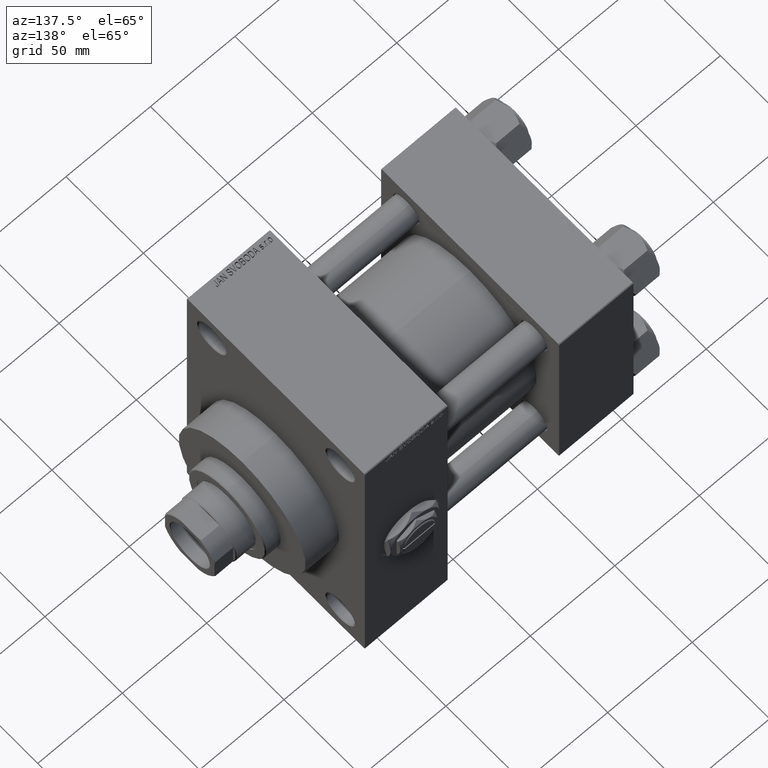
[diagram: clean part render]
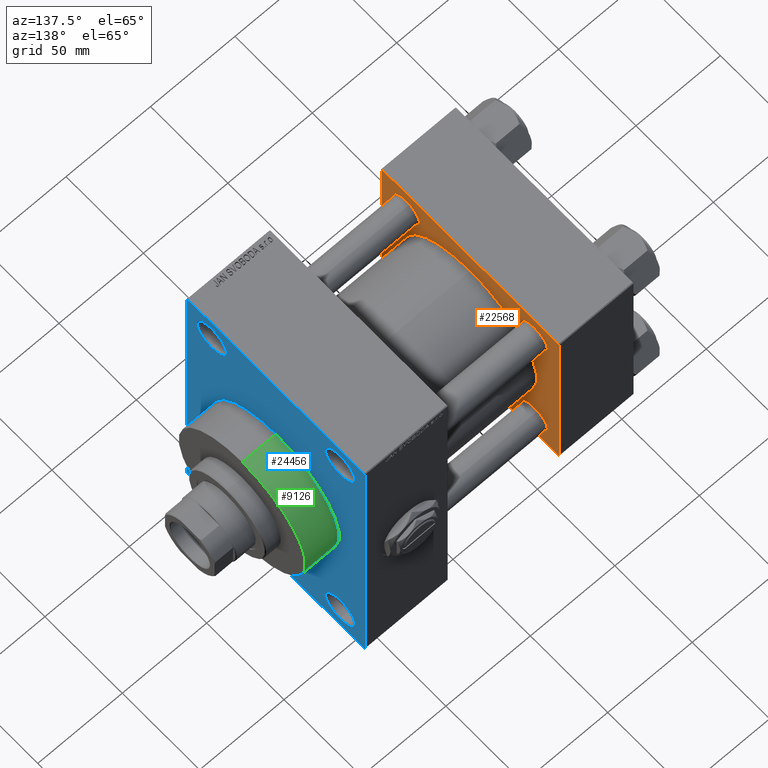
[diagram: same view with three faces highlighted in distinct colors, each labeled with its STEP entity id]
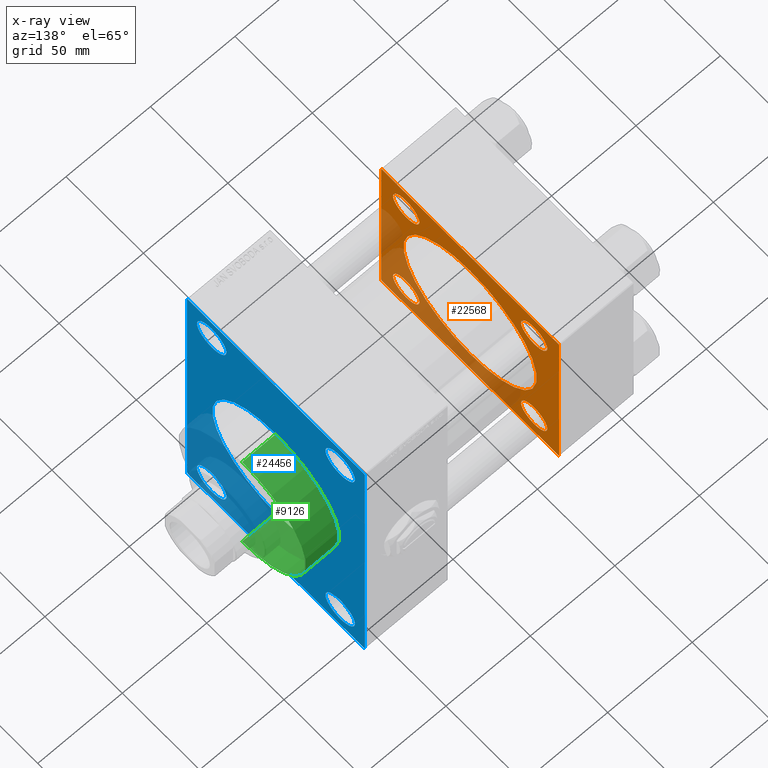
[diagram: x-ray of the same camera — body ghosted, the three highlighted faces saturated]
A machine part, auxiliary view with three faces highlighted in distinct colors.
The next image is the same camera in x-ray (body ghosted, the three faces saturated) — at least one of them is partly hidden behind the body in this view.
Their STEP definitions:

[orange] entity #22568 — the highlighted planar face has unit normal (-1, 0, 0).
#702 = FACE_BOUND ( 'NONE', #1813, .T. ) ;
#1254 = EDGE_LOOP ( 'NONE', ( #10943, #20870 ) ) ;
#1327 = LINE ( 'NONE', #38654, #24959 ) ;
#1813 = EDGE_LOOP ( 'NONE', ( #46915, #32768 ) ) ;
#1949 = DIRECTION ( 'NONE',  ( -1.000000000000000000, 0.000000000000000000, -0.000000000000000000 ) ) ;
#2425 = DIRECTION ( 'NONE',  ( -1.000000000000000000, 0.000000000000000000, -0.000000000000000000 ) ) ;
#2556 = VECTOR ( 'NONE', #47165, 1000.000000000000114 ) ;
#2649 = DIRECTION ( 'NONE',  ( -1.000000000000000000, 0.000000000000000000, -0.000000000000000000 ) ) ;
#2780 = VECTOR ( 'NONE', #45264, 1000.000000000000000 ) ;
#2898 = AXIS2_PLACEMENT_3D ( 'NONE', #33225, #14308, #25761 ) ;
#3093 = ORIENTED_EDGE ( 'NONE', *, *, #31645, .T. ) ;
#3532 = VECTOR ( 'NONE', #30349, 1000.000000000000000 ) ;
#3787 = VERTEX_POINT ( 'NONE', #44533 ) ;
#4403 = CIRCLE ( 'NONE', #18691, 43.00000000000000000 ) ;
#4936 = VERTEX_POINT ( 'NONE', #21849 ) ;
#4981 = CIRCLE ( 'NONE', #18488, 8.500000000000090594 ) ;
#5637 = DIRECTION ( 'NONE',  ( -0.000000000000000000, 0.000000000000000000, 1.000000000000000000 ) ) ;
#5666 = CARTESIAN_POINT ( 'NONE',  ( 44.00000000000000000, 41.34999999999999432, 41.35000000000000142 ) ) ;
#5720 = EDGE_CURVE ( 'NONE', #35423, #6785, #4403, .T. ) ;
#6636 = CARTESIAN_POINT ( 'NONE',  ( 44.00000000000000000, 41.34999999999999432, -41.35000000000000142 ) ) ;
#6785 = VERTEX_POINT ( 'NONE', #30821 ) ;
#7819 = CIRCLE ( 'NONE', #34824, 8.500000000000090594 ) ;
#8144 = EDGE_CURVE ( 'NONE', #6785, #35423, #35038, .T. ) ;
#8872 = FACE_BOUND ( 'NONE', #31505, .T. ) ;
#9112 = EDGE_CURVE ( 'NONE', #38554, #37947, #19185, .T. ) ;
#10046 = EDGE_CURVE ( 'NONE', #37947, #38554, #27186, .T. ) ;
#10348 = CARTESIAN_POINT ( 'NONE',  ( 44.00000000000000000, 41.34999999999999432, 41.35000000000000142 ) ) ;
#10454 = CARTESIAN_POINT ( 'NONE',  ( 44.00000000000000000, 41.34999999999999432, 32.84999999999991616 ) ) ;
#10570 = CARTESIAN_POINT ( 'NONE',  ( 44.00000000000000000, -41.34999999999998721, 41.35000000000000853 ) ) ;
#10943 = ORIENTED_EDGE ( 'NONE', *, *, #5720, .F. ) ;
#11081 = DIRECTION ( 'NONE',  ( 0.000000000000000000, -1.000000000000000000, -1.206764157201257045E-16 ) ) ;
#11169 = CARTESIAN_POINT ( 'NONE',  ( 44.00000000000000000, -41.34999999999998721, -32.84999999999992326 ) ) ;
#11819 = ORIENTED_EDGE ( 'NONE', *, *, #20085, .T. ) ;
#12043 = EDGE_LOOP ( 'NONE', ( #16556, #13936 ) ) ;
#12522 = VERTEX_POINT ( 'NONE', #14138 ) ;
#13206 = ORIENTED_EDGE ( 'NONE', *, *, #14824, .T. ) ;
#13323 = VECTOR ( 'NONE', #11081, 1000.000000000000000 ) ;
#13569 = DIRECTION ( 'NONE',  ( -1.000000000000000000, 0.000000000000000000, -0.000000000000000000 ) ) ;
#13614 = EDGE_CURVE ( 'NONE', #33828, #39934, #32082, .T. ) ;
#13936 = ORIENTED_EDGE ( 'NONE', *, *, #10046, .T. ) ;
#14138 = CARTESIAN_POINT ( 'NONE',  ( 44.00000000000000000, -57.00000000000003553, 57.49999999999999289 ) ) ;
#14308 = DIRECTION ( 'NONE',  ( -1.000000000000000000, 0.000000000000000000, -0.000000000000000000 ) ) ;
#14824 = EDGE_CURVE ( 'NONE', #36764, #18758, #34086, .T. ) ;
#15148 = ORIENTED_EDGE ( 'NONE', *, *, #46185, .F. ) ;
#15851 = FACE_BOUND ( 'NONE', #12043, .T. ) ;
#16361 = CARTESIAN_POINT ( 'NONE',  ( 44.00000000000000000, 41.34999999999999432, -41.35000000000000142 ) ) ;
#16556 = ORIENTED_EDGE ( 'NONE', *, *, #9112, .T. ) ;
#17003 = EDGE_CURVE ( 'NONE', #18758, #34148, #23119, .T. ) ;
#17170 = ORIENTED_EDGE ( 'NONE', *, *, #22683, .T. ) ;
#17253 = ORIENTED_EDGE ( 'NONE', *, *, #27049, .T. ) ;
#17298 = VERTEX_POINT ( 'NONE', #29545 ) ;
#18134 = CARTESIAN_POINT ( 'NONE',  ( 44.00000000000000000, -57.00000000000000711, -57.50000000000000711 ) ) ;
#18488 = AXIS2_PLACEMENT_3D ( 'NONE', #10570, #13569, #48148 ) ;
#18691 = AXIS2_PLACEMENT_3D ( 'NONE', #27868, #35595, #47278 ) ;
#18751 = AXIS2_PLACEMENT_3D ( 'NONE', #42971, #46707, #5637 ) ;
#18758 = VERTEX_POINT ( 'NONE', #41264 ) ;
#19185 = CIRCLE ( 'NONE', #39087, 8.500000000000090594 ) ;
#19380 = CARTESIAN_POINT ( 'NONE',  ( 44.00000000000000000, 57.49999999999999289, 57.50000000000000711 ) ) ;
#19511 = VECTOR ( 'NONE', #34827, 1000.000000000000114 ) ;
#19641 = EDGE_CURVE ( 'NONE', #34207, #41341, #45686, .T. ) ;
#20013 = CARTESIAN_POINT ( 'NONE',  ( 44.00000000000000000, 57.49999999999999289, -57.00000000000000711 ) ) ;
#20085 = EDGE_CURVE ( 'NONE', #23158, #12522, #38300, .T. ) ;
#20491 = CARTESIAN_POINT ( 'NONE',  ( 44.00000000000000000, -2.602085213965210642E-15, 0.000000000000000000 ) ) ;
#20549 = CARTESIAN_POINT ( 'NONE',  ( 44.00000000000000000, -2.602085213965210642E-15, 43.00000000000000000 ) ) ;
#20560 = CIRCLE ( 'NONE', #42025, 8.500000000000090594 ) ;
#20704 = DIRECTION ( 'NONE',  ( 0.000000000000000000, -0.7071067811865573427, 0.7071067811865376918 ) ) ;
#20870 = ORIENTED_EDGE ( 'NONE', *, *, #8144, .F. ) ;
#21552 = DIRECTION ( 'NONE',  ( 0.000000000000000000, 0.000000000000000000, 1.000000000000000000 ) ) ;
#21790 = EDGE_CURVE ( 'NONE', #41341, #34207, #48956, .T. ) ;
#21849 = CARTESIAN_POINT ( 'NONE',  ( 44.00000000000000000, 57.49999999999999289, 57.00000000000003553 ) ) ;
#22568 = ADVANCED_FACE ( 'NONE', ( #702, #15851, #31029, #8872, #31766, #46458 ), #39490, .F. ) ;
#22683 = EDGE_CURVE ( 'NONE', #3787, #25701, #42916, .T. ) ;
#22726 = VERTEX_POINT ( 'NONE', #46650 ) ;
#23119 = LINE ( 'NONE', #46023, #19511 ) ;
#23158 = VERTEX_POINT ( 'NONE', #24436 ) ;
#23211 = DIRECTION ( 'NONE',  ( 0.000000000000000000, 0.000000000000000000, -1.000000000000000000 ) ) ;
#23740 = DIRECTION ( 'NONE',  ( 1.000000000000000000, -0.000000000000000000, 0.000000000000000000 ) ) ;
#24023 = CARTESIAN_POINT ( 'NONE',  ( 44.00000000000000000, -57.50000000000000711, 57.00000000000000711 ) ) ;
#24314 = CARTESIAN_POINT ( 'NONE',  ( 44.00000000000000000, -41.34999999999998721, -49.85000000000010090 ) ) ;
#24337 = DIRECTION ( 'NONE',  ( 0.000000000000000000, 0.000000000000000000, 1.000000000000000000 ) ) ;
#24436 = CARTESIAN_POINT ( 'NONE',  ( 44.00000000000000000, 57.00000000000000711, 57.50000000000000711 ) ) ;
#24959 = VECTOR ( 'NONE', #23211, 1000.000000000000000 ) ;
#25701 = VERTEX_POINT ( 'NONE', #26437 ) ;
#25761 = DIRECTION ( 'NONE',  ( 0.000000000000000000, 0.000000000000000000, 1.000000000000000000 ) ) ;
#25858 = CARTESIAN_POINT ( 'NONE',  ( 44.00000000000000000, -57.50000000000000711, 57.00000000000000711 ) ) ;
#26283 = EDGE_CURVE ( 'NONE', #3787, #34148, #48165, .T. ) ;
#26437 = CARTESIAN_POINT ( 'NONE',  ( 44.00000000000000000, 57.49999999999999289, -57.00000000000000711 ) ) ;
#27049 = EDGE_CURVE ( 'NONE', #17298, #22726, #7819, .T. ) ;
#27186 = CIRCLE ( 'NONE', #29566, 8.500000000000090594 ) ;
#27279 = ORIENTED_EDGE ( 'NONE', *, *, #26283, .F. ) ;
#27868 = CARTESIAN_POINT ( 'NONE',  ( 44.00000000000000000, -2.602085213965210642E-15, 0.000000000000000000 ) ) ;
#28179 = LINE ( 'NONE', #43110, #44887 ) ;
#28836 = DIRECTION ( 'NONE',  ( 0.000000000000000000, 0.000000000000000000, 1.000000000000000000 ) ) ;
#29545 = CARTESIAN_POINT ( 'NONE',  ( 44.00000000000000000, -41.34999999999998721, 49.85000000000010090 ) ) ;
#29566 = AXIS2_PLACEMENT_3D ( 'NONE', #16361, #1949, #32283 ) ;
#30271 = AXIS2_PLACEMENT_3D ( 'NONE', #20491, #23740, #42658 ) ;
#30349 = DIRECTION ( 'NONE',  ( 0.000000000000000000, 0.000000000000000000, -1.000000000000000000 ) ) ;
#30520 = AXIS2_PLACEMENT_3D ( 'NONE', #10348, #2649, #21552 ) ;
#30821 = CARTESIAN_POINT ( 'NONE',  ( 44.00000000000000000, 2.663896022368408223E-15, -43.00000000000000000 ) ) ;
#31006 = EDGE_LOOP ( 'NONE', ( #27279, #17170, #15148, #36944, #11819, #31755, #13206, #48196 ) ) ;
#31029 = FACE_BOUND ( 'NONE', #43690, .T. ) ;
#31505 = EDGE_LOOP ( 'NONE', ( #3093, #33924 ) ) ;
#31645 = EDGE_CURVE ( 'NONE', #39934, #33828, #20560, .T. ) ;
#31755 = ORIENTED_EDGE ( 'NONE', *, *, #42171, .T. ) ;
#31766 = FACE_BOUND ( 'NONE', #1254, .T. ) ;
#32082 = CIRCLE ( 'NONE', #30520, 8.500000000000090594 ) ;
#32283 = DIRECTION ( 'NONE',  ( 0.000000000000000000, 0.000000000000000000, 1.000000000000000000 ) ) ;
#32405 = DIRECTION ( 'NONE',  ( 0.000000000000000000, 0.000000000000000000, 1.000000000000000000 ) ) ;
#32584 = ORIENTED_EDGE ( 'NONE', *, *, #43042, .T. ) ;
#32768 = ORIENTED_EDGE ( 'NONE', *, *, #19641, .T. ) ;
#33225 = CARTESIAN_POINT ( 'NONE',  ( 44.00000000000000000, -41.34999999999998721, -41.35000000000000853 ) ) ;
#33828 = VERTEX_POINT ( 'NONE', #42936 ) ;
#33924 = ORIENTED_EDGE ( 'NONE', *, *, #13614, .T. ) ;
#34086 = LINE ( 'NONE', #46025, #3532 ) ;
#34148 = VERTEX_POINT ( 'NONE', #18134 ) ;
#34207 = VERTEX_POINT ( 'NONE', #11169 ) ;
#34724 = DIRECTION ( 'NONE',  ( -0.000000000000000000, 0.7071067811865376918, 0.7071067811865573427 ) ) ;
#34824 = AXIS2_PLACEMENT_3D ( 'NONE', #44506, #48230, #28836 ) ;
#34827 = DIRECTION ( 'NONE',  ( 0.000000000000000000, 0.7071067811865474617, -0.7071067811865474617 ) ) ;
#35038 = CIRCLE ( 'NONE', #30271, 43.00000000000000000 ) ;
#35237 = LINE ( 'NONE', #24023, #2556 ) ;
#35423 = VERTEX_POINT ( 'NONE', #20549 ) ;
#35595 = DIRECTION ( 'NONE',  ( 1.000000000000000000, -0.000000000000000000, 0.000000000000000000 ) ) ;
#36764 = VERTEX_POINT ( 'NONE', #25858 ) ;
#36944 = ORIENTED_EDGE ( 'NONE', *, *, #48456, .T. ) ;
#37500 = CARTESIAN_POINT ( 'NONE',  ( 44.00000000000000000, 41.34999999999999432, -32.84999999999991616 ) ) ;
#37947 = VERTEX_POINT ( 'NONE', #37500 ) ;
#38300 = LINE ( 'NONE', #19380, #2780 ) ;
#38554 = VERTEX_POINT ( 'NONE', #42839 ) ;
#38654 = CARTESIAN_POINT ( 'NONE',  ( 44.00000000000000000, 57.49999999999999289, 57.50000000000000711 ) ) ;
#39087 = AXIS2_PLACEMENT_3D ( 'NONE', #6636, #2425, #47698 ) ;
#39490 = PLANE ( 'NONE',  #18751 ) ;
#39934 = VERTEX_POINT ( 'NONE', #10454 ) ;
#40123 = DIRECTION ( 'NONE',  ( -1.000000000000000000, 0.000000000000000000, -0.000000000000000000 ) ) ;
#41264 = CARTESIAN_POINT ( 'NONE',  ( 44.00000000000000000, -57.50000000000000711, -57.00000000000000711 ) ) ;
#41341 = VERTEX_POINT ( 'NONE', #24314 ) ;
#42025 = AXIS2_PLACEMENT_3D ( 'NONE', #5666, #47222, #24337 ) ;
#42171 = EDGE_CURVE ( 'NONE', #12522, #36764, #35237, .T. ) ;
#42611 = VECTOR ( 'NONE', #34724, 1000.000000000000114 ) ;
#42658 = DIRECTION ( 'NONE',  ( 0.000000000000000000, 0.000000000000000000, 1.000000000000000000 ) ) ;
#42839 = CARTESIAN_POINT ( 'NONE',  ( 44.00000000000000000, 41.34999999999999432, -49.85000000000009379 ) ) ;
#42916 = LINE ( 'NONE', #20013, #42611 ) ;
#42936 = CARTESIAN_POINT ( 'NONE',  ( 44.00000000000000000, 41.34999999999999432, 49.85000000000009379 ) ) ;
#42971 = CARTESIAN_POINT ( 'NONE',  ( 44.00000000000000000, 0.000000000000000000, 0.000000000000000000 ) ) ;
#43042 = EDGE_CURVE ( 'NONE', #22726, #17298, #4981, .T. ) ;
#43110 = CARTESIAN_POINT ( 'NONE',  ( 44.00000000000000000, 57.00000000000000711, 57.50000000000000711 ) ) ;
#43690 = EDGE_LOOP ( 'NONE', ( #32584, #17253 ) ) ;
#44129 = AXIS2_PLACEMENT_3D ( 'NONE', #47097, #40123, #32405 ) ;
#44506 = CARTESIAN_POINT ( 'NONE',  ( 44.00000000000000000, -41.34999999999998721, 41.35000000000000853 ) ) ;
#44533 = CARTESIAN_POINT ( 'NONE',  ( 44.00000000000000000, 57.00000000000002132, -57.49999999999999289 ) ) ;
#44887 = VECTOR ( 'NONE', #20704, 1000.000000000000114 ) ;
#45174 = CARTESIAN_POINT ( 'NONE',  ( 44.00000000000000000, 57.49999999999999289, -57.49999999999999289 ) ) ;
#45264 = DIRECTION ( 'NONE',  ( 0.000000000000000000, -1.000000000000000000, -1.206764157201257045E-16 ) ) ;
#45686 = CIRCLE ( 'NONE', #44129, 8.500000000000090594 ) ;
#46023 = CARTESIAN_POINT ( 'NONE',  ( 44.00000000000000000, -57.00000000000000711, -57.50000000000000711 ) ) ;
#46025 = CARTESIAN_POINT ( 'NONE',  ( 44.00000000000000000, -57.50000000000000711, 57.49999999999999289 ) ) ;
#46185 = EDGE_CURVE ( 'NONE', #4936, #25701, #1327, .T. ) ;
#46458 = FACE_OUTER_BOUND ( 'NONE', #31006, .T. ) ;
#46650 = CARTESIAN_POINT ( 'NONE',  ( 44.00000000000000000, -41.34999999999998721, 32.84999999999992326 ) ) ;
#46707 = DIRECTION ( 'NONE',  ( -1.000000000000000000, 0.000000000000000000, -0.000000000000000000 ) ) ;
#46915 = ORIENTED_EDGE ( 'NONE', *, *, #21790, .T. ) ;
#47097 = CARTESIAN_POINT ( 'NONE',  ( 44.00000000000000000, -41.34999999999998721, -41.35000000000000853 ) ) ;
#47165 = DIRECTION ( 'NONE',  ( -0.000000000000000000, -0.7071067811865376918, -0.7071067811865573427 ) ) ;
#47222 = DIRECTION ( 'NONE',  ( -1.000000000000000000, 0.000000000000000000, -0.000000000000000000 ) ) ;
#47278 = DIRECTION ( 'NONE',  ( 0.000000000000000000, 0.000000000000000000, 1.000000000000000000 ) ) ;
#47698 = DIRECTION ( 'NONE',  ( 0.000000000000000000, 0.000000000000000000, 1.000000000000000000 ) ) ;
#48148 = DIRECTION ( 'NONE',  ( 0.000000000000000000, 0.000000000000000000, 1.000000000000000000 ) ) ;
#48165 = LINE ( 'NONE', #45174, #13323 ) ;
#48196 = ORIENTED_EDGE ( 'NONE', *, *, #17003, .T. ) ;
#48230 = DIRECTION ( 'NONE',  ( -1.000000000000000000, 0.000000000000000000, -0.000000000000000000 ) ) ;
#48456 = EDGE_CURVE ( 'NONE', #4936, #23158, #28179, .T. ) ;
#48956 = CIRCLE ( 'NONE', #2898, 8.500000000000090594 ) ;

[blue] entity #24456 — the highlighted planar face has unit normal (-1, 0, 0).
#140 = CIRCLE ( 'NONE', #20785, 9.500000000000008882 ) ;
#222 = FACE_BOUND ( 'NONE', #41186, .T. ) ;
#798 = EDGE_LOOP ( 'NONE', ( #25548, #41808 ) ) ;
#848 = VERTEX_POINT ( 'NONE', #15009 ) ;
#1408 = EDGE_LOOP ( 'NONE', ( #1893, #37699 ) ) ;
#1507 = EDGE_CURVE ( 'NONE', #44650, #30750, #35225, .T. ) ;
#1551 = VECTOR ( 'NONE', #27163, 1000.000000000000000 ) ;
#1893 = ORIENTED_EDGE ( 'NONE', *, *, #8259, .T. ) ;
#2737 = ORIENTED_EDGE ( 'NONE', *, *, #33057, .T. ) ;
#2795 = EDGE_CURVE ( 'NONE', #848, #45866, #32284, .T. ) ;
#2931 = ORIENTED_EDGE ( 'NONE', *, *, #38703, .T. ) ;
#3146 = AXIS2_PLACEMENT_3D ( 'NONE', #27905, #39610, #5525 ) ;
#3493 = ORIENTED_EDGE ( 'NONE', *, *, #18942, .T. ) ;
#3746 = VERTEX_POINT ( 'NONE', #17646 ) ;
#4399 = CARTESIAN_POINT ( 'NONE',  ( 159.0000000000000000, 0.000000000000000000, 41.00000000000000000 ) ) ;
#4453 = DIRECTION ( 'NONE',  ( 0.000000000000000000, 0.000000000000000000, -1.000000000000000000 ) ) ;
#4583 = VERTEX_POINT ( 'NONE', #20922 ) ;
#5086 = CARTESIAN_POINT ( 'NONE',  ( 159.0000000000000000, 56.99999999999994316, 89.99999999999998579 ) ) ;
#5279 = VECTOR ( 'NONE', #20496, 1000.000000000000114 ) ;
#5525 = DIRECTION ( 'NONE',  ( 0.000000000000000000, 0.000000000000000000, 1.000000000000000000 ) ) ;
#5960 = CARTESIAN_POINT ( 'NONE',  ( 159.0000000000000000, -57.50000000000002132, -89.49999999999991473 ) ) ;
#6471 = DIRECTION ( 'NONE',  ( 0.000000000000000000, 0.000000000000000000, 1.000000000000000000 ) ) ;
#6532 = CIRCLE ( 'NONE', #40709, 9.500000000000008882 ) ;
#6677 = AXIS2_PLACEMENT_3D ( 'NONE', #9498, #29152, #31900 ) ;
#6678 = CARTESIAN_POINT ( 'NONE',  ( 159.0000000000000000, -57.50000000000002132, 89.49999999999994316 ) ) ;
#7288 = CIRCLE ( 'NONE', #16777, 41.00000000000000000 ) ;
#7796 = ORIENTED_EDGE ( 'NONE', *, *, #30262, .T. ) ;
#8112 = CARTESIAN_POINT ( 'NONE',  ( 159.0000000000000000, 57.49999999999997868, -89.49999999999995737 ) ) ;
#8259 = EDGE_CURVE ( 'NONE', #4583, #37224, #140, .T. ) ;
#8637 = CIRCLE ( 'NONE', #22167, 41.00000000000000000 ) ;
#8797 = CARTESIAN_POINT ( 'NONE',  ( 159.0000000000000000, -41.49999999999999289, -74.49999999999998579 ) ) ;
#8900 = DIRECTION ( 'NONE',  ( 0.000000000000000000, 3.854941057726238467E-17, -1.000000000000000000 ) ) ;
#8973 = EDGE_LOOP ( 'NONE', ( #3493, #37499, #24235, #14306, #12667, #36181, #15089, #46842 ) ) ;
#9498 = CARTESIAN_POINT ( 'NONE',  ( 159.0000000000000000, -41.49999999999999289, -74.49999999999998579 ) ) ;
#11044 = VERTEX_POINT ( 'NONE', #28931 ) ;
#11062 = VERTEX_POINT ( 'NONE', #33400 ) ;
#11335 = VERTEX_POINT ( 'NONE', #36106 ) ;
#11918 = DIRECTION ( 'NONE',  ( -1.000000000000000000, 0.000000000000000000, -0.000000000000000000 ) ) ;
#12637 = CARTESIAN_POINT ( 'NONE',  ( 159.0000000000000000, 0.000000000000000000, 0.000000000000000000 ) ) ;
#12667 = ORIENTED_EDGE ( 'NONE', *, *, #2795, .F. ) ;
#13016 = DIRECTION ( 'NONE',  ( 0.000000000000000000, 0.000000000000000000, -1.000000000000000000 ) ) ;
#13143 = VERTEX_POINT ( 'NONE', #24973 ) ;
#14306 = ORIENTED_EDGE ( 'NONE', *, *, #31840, .T. ) ;
#14376 = EDGE_CURVE ( 'NONE', #47484, #14734, #17961, .T. ) ;
#14734 = VERTEX_POINT ( 'NONE', #36349 ) ;
#14924 = DIRECTION ( 'NONE',  ( -1.000000000000000000, 0.000000000000000000, -0.000000000000000000 ) ) ;
#15009 = CARTESIAN_POINT ( 'NONE',  ( 159.0000000000000000, 57.49999999999997158, 89.49999999999995737 ) ) ;
#15089 = ORIENTED_EDGE ( 'NONE', *, *, #33168, .T. ) ;
#15232 = AXIS2_PLACEMENT_3D ( 'NONE', #39998, #29278, #32033 ) ;
#15376 = PLANE ( 'NONE',  #38702 ) ;
#15443 = CARTESIAN_POINT ( 'NONE',  ( 159.0000000000000000, 41.50000000000000711, -74.50000000000000000 ) ) ;
#15866 = FACE_BOUND ( 'NONE', #24765, .T. ) ;
#16301 = VERTEX_POINT ( 'NONE', #43714 ) ;
#16435 = ORIENTED_EDGE ( 'NONE', *, *, #31591, .T. ) ;
#16604 = CIRCLE ( 'NONE', #30898, 9.500000000000008882 ) ;
#16777 = AXIS2_PLACEMENT_3D ( 'NONE', #12637, #43243, #4453 ) ;
#17475 = CARTESIAN_POINT ( 'NONE',  ( 159.0000000000000000, 57.49999999999997868, -90.00000000000000000 ) ) ;
#17646 = CARTESIAN_POINT ( 'NONE',  ( 159.0000000000000000, 41.50000000000000711, 65.00000000000000000 ) ) ;
#17905 = CARTESIAN_POINT ( 'NONE',  ( 159.0000000000000000, -41.49999999999999289, 74.50000000000001421 ) ) ;
#17961 = LINE ( 'NONE', #33641, #24164 ) ;
#18383 = VERTEX_POINT ( 'NONE', #19772 ) ;
#18681 = AXIS2_PLACEMENT_3D ( 'NONE', #26851, #11918, #27089 ) ;
#18823 = LINE ( 'NONE', #8112, #45293 ) ;
#18942 = EDGE_CURVE ( 'NONE', #30750, #47484, #25040, .T. ) ;
#19302 = CARTESIAN_POINT ( 'NONE',  ( 159.0000000000000000, 41.50000000000000711, -64.99999999999998579 ) ) ;
#19379 = VECTOR ( 'NONE', #8900, 1000.000000000000000 ) ;
#19772 = CARTESIAN_POINT ( 'NONE',  ( 159.0000000000000000, -41.49999999999999289, -64.99999999999997158 ) ) ;
#19998 = LINE ( 'NONE', #17475, #36753 ) ;
#20161 = EDGE_CURVE ( 'NONE', #37224, #4583, #40149, .T. ) ;
#20208 = CIRCLE ( 'NONE', #6677, 9.500000000000008882 ) ;
#20496 = DIRECTION ( 'NONE',  ( 0.000000000000000000, -0.7071067811865474617, 0.7071067811865474617 ) ) ;
#20785 = AXIS2_PLACEMENT_3D ( 'NONE', #15443, #46054, #34359 ) ;
#20922 = CARTESIAN_POINT ( 'NONE',  ( 159.0000000000000000, 41.50000000000000711, -84.00000000000000000 ) ) ;
#21473 = DIRECTION ( 'NONE',  ( 0.000000000000000000, -1.000000000000000000, -1.206764157201257045E-16 ) ) ;
#21706 = DIRECTION ( 'NONE',  ( 0.000000000000000000, 0.7071067811865574537, -0.7071067811865376918 ) ) ;
#22087 = EDGE_CURVE ( 'NONE', #848, #11062, #47122, .T. ) ;
#22167 = AXIS2_PLACEMENT_3D ( 'NONE', #38912, #24461, #13016 ) ;
#23029 = CARTESIAN_POINT ( 'NONE',  ( 159.0000000000000000, 57.49999999999997868, -89.49999999999990052 ) ) ;
#23973 = DIRECTION ( 'NONE',  ( -1.000000000000000000, 0.000000000000000000, -0.000000000000000000 ) ) ;
#24011 = CARTESIAN_POINT ( 'NONE',  ( 159.0000000000000000, -57.50000000000002132, 89.49999999999994316 ) ) ;
#24164 = VECTOR ( 'NONE', #21706, 999.9999999999998863 ) ;
#24235 = ORIENTED_EDGE ( 'NONE', *, *, #43365, .F. ) ;
#24456 = ADVANCED_FACE ( 'NONE', ( #222, #15866, #27321, #30315, #45491, #27071 ), #15376, .F. ) ;
#24461 = DIRECTION ( 'NONE',  ( 1.000000000000000000, 0.000000000000000000, 0.000000000000000000 ) ) ;
#24765 = EDGE_LOOP ( 'NONE', ( #29979, #2737 ) ) ;
#24973 = CARTESIAN_POINT ( 'NONE',  ( 159.0000000000000000, -41.49999999999999289, -83.99999999999998579 ) ) ;
#25040 = LINE ( 'NONE', #40230, #41714 ) ;
#25548 = ORIENTED_EDGE ( 'NONE', *, *, #28476, .F. ) ;
#26332 = DIRECTION ( 'NONE',  ( -0.000000000000000000, 0.000000000000000000, 1.000000000000000000 ) ) ;
#26851 = CARTESIAN_POINT ( 'NONE',  ( 159.0000000000000000, 41.50000000000000711, -74.50000000000000000 ) ) ;
#27071 = FACE_OUTER_BOUND ( 'NONE', #8973, .T. ) ;
#27089 = DIRECTION ( 'NONE',  ( 0.000000000000000000, 0.000000000000000000, 1.000000000000000000 ) ) ;
#27163 = DIRECTION ( 'NONE',  ( 0.000000000000000000, -1.000000000000000000, -1.206764157201257291E-16 ) ) ;
#27321 = FACE_BOUND ( 'NONE', #1408, .T. ) ;
#27418 = LINE ( 'NONE', #34645, #1551 ) ;
#27905 = CARTESIAN_POINT ( 'NONE',  ( 159.0000000000000000, 41.50000000000000711, 74.50000000000001421 ) ) ;
#28476 = EDGE_CURVE ( 'NONE', #34769, #38017, #8637, .T. ) ;
#28931 = CARTESIAN_POINT ( 'NONE',  ( 159.0000000000000000, 56.99999999999992895, -90.00000000000000000 ) ) ;
#29152 = DIRECTION ( 'NONE',  ( -1.000000000000000000, 0.000000000000000000, -0.000000000000000000 ) ) ;
#29278 = DIRECTION ( 'NONE',  ( -1.000000000000000000, 0.000000000000000000, -0.000000000000000000 ) ) ;
#29979 = ORIENTED_EDGE ( 'NONE', *, *, #46349, .T. ) ;
#30080 = CIRCLE ( 'NONE', #34063, 9.500000000000008882 ) ;
#30262 = EDGE_CURVE ( 'NONE', #11335, #3746, #39681, .T. ) ;
#30315 = FACE_BOUND ( 'NONE', #39864, .T. ) ;
#30750 = VERTEX_POINT ( 'NONE', #6678 ) ;
#30898 = AXIS2_PLACEMENT_3D ( 'NONE', #8797, #23973, #39170 ) ;
#31591 = EDGE_CURVE ( 'NONE', #16301, #46265, #30080, .T. ) ;
#31620 = ORIENTED_EDGE ( 'NONE', *, *, #36996, .T. ) ;
#31840 = EDGE_CURVE ( 'NONE', #11044, #45866, #18823, .T. ) ;
#31900 = DIRECTION ( 'NONE',  ( 0.000000000000000000, 0.000000000000000000, 1.000000000000000000 ) ) ;
#32033 = DIRECTION ( 'NONE',  ( 0.000000000000000000, 0.000000000000000000, 1.000000000000000000 ) ) ;
#32284 = LINE ( 'NONE', #39019, #19379 ) ;
#33057 = EDGE_CURVE ( 'NONE', #18383, #13143, #16604, .T. ) ;
#33168 = EDGE_CURVE ( 'NONE', #11062, #44650, #27418, .T. ) ;
#33400 = CARTESIAN_POINT ( 'NONE',  ( 159.0000000000000000, 56.99999999999994316, 89.99999999999998579 ) ) ;
#33641 = CARTESIAN_POINT ( 'NONE',  ( 159.0000000000000000, -56.99999999999996447, -90.00000000000001421 ) ) ;
#34063 = AXIS2_PLACEMENT_3D ( 'NONE', #38293, #48552, #34811 ) ;
#34359 = DIRECTION ( 'NONE',  ( 0.000000000000000000, 0.000000000000000000, 1.000000000000000000 ) ) ;
#34645 = CARTESIAN_POINT ( 'NONE',  ( 159.0000000000000000, 57.49999999999997158, 89.99999999999998579 ) ) ;
#34769 = VERTEX_POINT ( 'NONE', #4399 ) ;
#34811 = DIRECTION ( 'NONE',  ( 0.000000000000000000, 0.000000000000000000, 1.000000000000000000 ) ) ;
#35225 = LINE ( 'NONE', #24011, #36816 ) ;
#36106 = CARTESIAN_POINT ( 'NONE',  ( 159.0000000000000000, 41.50000000000000711, 84.00000000000001421 ) ) ;
#36181 = ORIENTED_EDGE ( 'NONE', *, *, #22087, .T. ) ;
#36255 = DIRECTION ( 'NONE',  ( 0.000000000000000000, 0.000000000000000000, -1.000000000000000000 ) ) ;
#36349 = CARTESIAN_POINT ( 'NONE',  ( 159.0000000000000000, -56.99999999999996447, -90.00000000000001421 ) ) ;
#36753 = VECTOR ( 'NONE', #21473, 1000.000000000000000 ) ;
#36816 = VECTOR ( 'NONE', #42933, 1000.000000000000000 ) ;
#36914 = EDGE_CURVE ( 'NONE', #38017, #34769, #7288, .T. ) ;
#36996 = EDGE_CURVE ( 'NONE', #3746, #11335, #44613, .T. ) ;
#37224 = VERTEX_POINT ( 'NONE', #19302 ) ;
#37499 = ORIENTED_EDGE ( 'NONE', *, *, #14376, .T. ) ;
#37699 = ORIENTED_EDGE ( 'NONE', *, *, #20161, .T. ) ;
#38017 = VERTEX_POINT ( 'NONE', #43196 ) ;
#38039 = CARTESIAN_POINT ( 'NONE',  ( 159.0000000000000000, 0.000000000000000000, 0.000000000000000000 ) ) ;
#38293 = CARTESIAN_POINT ( 'NONE',  ( 159.0000000000000000, -41.49999999999999289, 74.50000000000001421 ) ) ;
#38702 = AXIS2_PLACEMENT_3D ( 'NONE', #38039, #42502, #26332 ) ;
#38703 = EDGE_CURVE ( 'NONE', #46265, #16301, #6532, .T. ) ;
#38912 = CARTESIAN_POINT ( 'NONE',  ( 159.0000000000000000, 0.000000000000000000, 0.000000000000000000 ) ) ;
#39019 = CARTESIAN_POINT ( 'NONE',  ( 159.0000000000000000, 57.49999999999997158, 89.99999999999998579 ) ) ;
#39170 = DIRECTION ( 'NONE',  ( 0.000000000000000000, 0.000000000000000000, 1.000000000000000000 ) ) ;
#39610 = DIRECTION ( 'NONE',  ( -1.000000000000000000, 0.000000000000000000, -0.000000000000000000 ) ) ;
#39681 = CIRCLE ( 'NONE', #3146, 9.500000000000008882 ) ;
#39864 = EDGE_LOOP ( 'NONE', ( #31620, #7796 ) ) ;
#39998 = CARTESIAN_POINT ( 'NONE',  ( 159.0000000000000000, 41.50000000000000711, 74.50000000000001421 ) ) ;
#40149 = CIRCLE ( 'NONE', #18681, 9.500000000000008882 ) ;
#40230 = CARTESIAN_POINT ( 'NONE',  ( 159.0000000000000000, -57.50000000000002132, 89.99999999999997158 ) ) ;
#40709 = AXIS2_PLACEMENT_3D ( 'NONE', #17905, #14924, #6471 ) ;
#41186 = EDGE_LOOP ( 'NONE', ( #2931, #16435 ) ) ;
#41714 = VECTOR ( 'NONE', #36255, 1000.000000000000000 ) ;
#41808 = ORIENTED_EDGE ( 'NONE', *, *, #36914, .F. ) ;
#42502 = DIRECTION ( 'NONE',  ( -1.000000000000000000, 0.000000000000000000, -0.000000000000000000 ) ) ;
#42556 = CARTESIAN_POINT ( 'NONE',  ( 159.0000000000000000, -56.99999999999998579, 89.99999999999997158 ) ) ;
#42933 = DIRECTION ( 'NONE',  ( -0.000000000000000000, -0.7071067811865524577, -0.7071067811865426878 ) ) ;
#43196 = CARTESIAN_POINT ( 'NONE',  ( 159.0000000000000000, 5.021051876504148963E-15, -41.00000000000000000 ) ) ;
#43243 = DIRECTION ( 'NONE',  ( 1.000000000000000000, 0.000000000000000000, 0.000000000000000000 ) ) ;
#43361 = CARTESIAN_POINT ( 'NONE',  ( 159.0000000000000000, -41.49999999999999289, 65.00000000000000000 ) ) ;
#43365 = EDGE_CURVE ( 'NONE', #11044, #14734, #19998, .T. ) ;
#43714 = CARTESIAN_POINT ( 'NONE',  ( 159.0000000000000000, -41.49999999999999289, 84.00000000000001421 ) ) ;
#44613 = CIRCLE ( 'NONE', #15232, 9.500000000000008882 ) ;
#44650 = VERTEX_POINT ( 'NONE', #42556 ) ;
#45293 = VECTOR ( 'NONE', #48938, 999.9999999999998863 ) ;
#45491 = FACE_BOUND ( 'NONE', #798, .T. ) ;
#45866 = VERTEX_POINT ( 'NONE', #23029 ) ;
#46054 = DIRECTION ( 'NONE',  ( -1.000000000000000000, 0.000000000000000000, -0.000000000000000000 ) ) ;
#46265 = VERTEX_POINT ( 'NONE', #43361 ) ;
#46349 = EDGE_CURVE ( 'NONE', #13143, #18383, #20208, .T. ) ;
#46842 = ORIENTED_EDGE ( 'NONE', *, *, #1507, .T. ) ;
#47122 = LINE ( 'NONE', #5086, #5279 ) ;
#47484 = VERTEX_POINT ( 'NONE', #5960 ) ;
#48552 = DIRECTION ( 'NONE',  ( -1.000000000000000000, 0.000000000000000000, -0.000000000000000000 ) ) ;
#48938 = DIRECTION ( 'NONE',  ( -0.000000000000000000, 0.7071067811865574537, 0.7071067811865376918 ) ) ;

[green] entity #9126 — the highlighted cylindrical surface (partial cylindrical patch) has radius 41 mm, axis along (-1, -0, -0).
#1091 = LINE ( 'NONE', #34426, #48432 ) ;
#2263 = EDGE_CURVE ( 'NONE', #36218, #34769, #41102, .T. ) ;
#2358 = DIRECTION ( 'NONE',  ( 0.000000000000000000, 0.000000000000000000, -1.000000000000000000 ) ) ;
#4399 = CARTESIAN_POINT ( 'NONE',  ( 159.0000000000000000, 0.000000000000000000, 41.00000000000000000 ) ) ;
#4453 = DIRECTION ( 'NONE',  ( 0.000000000000000000, 0.000000000000000000, -1.000000000000000000 ) ) ;
#7010 = CARTESIAN_POINT ( 'NONE',  ( 179.0000000000000000, 0.000000000000000000, 41.00000000000000000 ) ) ;
#7288 = CIRCLE ( 'NONE', #16777, 41.00000000000000000 ) ;
#8011 = VERTEX_POINT ( 'NONE', #27228 ) ;
#8298 = EDGE_CURVE ( 'NONE', #8011, #36218, #22388, .T. ) ;
#9126 = ADVANCED_FACE ( 'NONE', ( #47934 ), #29035, .T. ) ;
#10118 = CARTESIAN_POINT ( 'NONE',  ( 179.0000000000000000, 0.000000000000000000, 0.000000000000000000 ) ) ;
#12637 = CARTESIAN_POINT ( 'NONE',  ( 159.0000000000000000, 0.000000000000000000, 0.000000000000000000 ) ) ;
#12648 = ORIENTED_EDGE ( 'NONE', *, *, #31264, .T. ) ;
#13831 = VECTOR ( 'NONE', #33624, 1000.000000000000000 ) ;
#13873 = ORIENTED_EDGE ( 'NONE', *, *, #8298, .F. ) ;
#14099 = DIRECTION ( 'NONE',  ( 0.000000000000000000, 0.000000000000000000, 1.000000000000000000 ) ) ;
#16777 = AXIS2_PLACEMENT_3D ( 'NONE', #12637, #43243, #4453 ) ;
#17813 = DIRECTION ( 'NONE',  ( -1.000000000000000000, -0.000000000000000000, -0.000000000000000000 ) ) ;
#19242 = DIRECTION ( 'NONE',  ( -1.000000000000000000, -0.000000000000000000, -0.000000000000000000 ) ) ;
#21012 = CARTESIAN_POINT ( 'NONE',  ( 179.0000000000000000, 0.000000000000000000, 0.000000000000000000 ) ) ;
#22388 = CIRCLE ( 'NONE', #47806, 41.00000000000000000 ) ;
#27228 = CARTESIAN_POINT ( 'NONE',  ( 179.0000000000000000, 5.021051876504148963E-15, -41.00000000000000000 ) ) ;
#29035 = CYLINDRICAL_SURFACE ( 'NONE', #47013, 41.00000000000000000 ) ;
#30394 = ORIENTED_EDGE ( 'NONE', *, *, #2263, .F. ) ;
#30779 = ORIENTED_EDGE ( 'NONE', *, *, #36914, .T. ) ;
#31264 = EDGE_CURVE ( 'NONE', #8011, #38017, #1091, .T. ) ;
#32211 = DIRECTION ( 'NONE',  ( 1.000000000000000000, 0.000000000000000000, 0.000000000000000000 ) ) ;
#33624 = DIRECTION ( 'NONE',  ( -1.000000000000000000, -0.000000000000000000, -0.000000000000000000 ) ) ;
#34426 = CARTESIAN_POINT ( 'NONE',  ( 179.0000000000000000, 5.021051876504148963E-15, -41.00000000000000000 ) ) ;
#34769 = VERTEX_POINT ( 'NONE', #4399 ) ;
#36218 = VERTEX_POINT ( 'NONE', #44550 ) ;
#36914 = EDGE_CURVE ( 'NONE', #38017, #34769, #7288, .T. ) ;
#38017 = VERTEX_POINT ( 'NONE', #43196 ) ;
#41102 = LINE ( 'NONE', #7010, #13831 ) ;
#43196 = CARTESIAN_POINT ( 'NONE',  ( 159.0000000000000000, 5.021051876504148963E-15, -41.00000000000000000 ) ) ;
#43243 = DIRECTION ( 'NONE',  ( 1.000000000000000000, 0.000000000000000000, 0.000000000000000000 ) ) ;
#44550 = CARTESIAN_POINT ( 'NONE',  ( 179.0000000000000000, 0.000000000000000000, 41.00000000000000000 ) ) ;
#47013 = AXIS2_PLACEMENT_3D ( 'NONE', #10118, #17813, #14099 ) ;
#47806 = AXIS2_PLACEMENT_3D ( 'NONE', #21012, #32211, #2358 ) ;
#47934 = FACE_OUTER_BOUND ( 'NONE', #48555, .T. ) ;
#48432 = VECTOR ( 'NONE', #19242, 1000.000000000000000 ) ;
#48555 = EDGE_LOOP ( 'NONE', ( #13873, #12648, #30779, #30394 ) ) ;